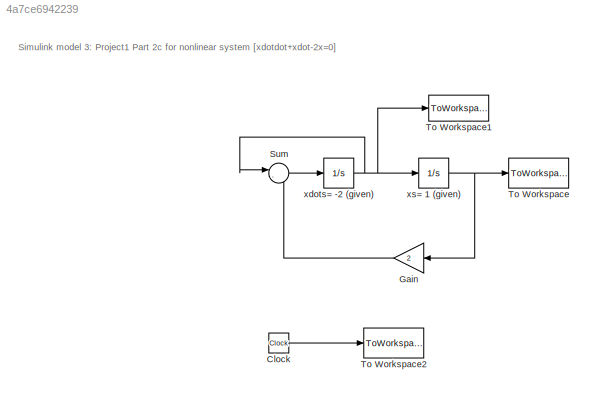
MODEL slx_4a7ce6942239
KIND model
BLOCK [Clock] Clock
BLOCK [Gain] Gain
  Gain = 2
  OutDataTypeStr = Inherit: Inherit via internal rule
  ParamDataTypeStr = Inherit: Inherit via internal rule
  SaturateOnIntegerOverflow = off
BLOCK [Sum] Sum
  IconShape = round
  InputSameDT = off
  Inputs = |-+
  OutDataTypeStr = Inherit: Inherit via internal rule
  Ports = [2, 1]
  SaturateOnIntegerOverflow = off
BLOCK [ToWorkspace] To Workspace
  FixptAsFi = on
  MaxDataPoints = inf
  Ports = [1]
  SampleTime = -1
  Save2DSignal = 3-D array (concatenate along third dimension)
  VariableName = xs
BLOCK [ToWorkspace] To Workspace1
  FixptAsFi = on
  MaxDataPoints = inf
  Ports = [1]
  SampleTime = -1
  Save2DSignal = 3-D array (concatenate along third dimension)
  VariableName = xdots
BLOCK [ToWorkspace] To Workspace2
  FixptAsFi = on
  MaxDataPoints = inf
  Ports = [1]
  SampleTime = -1
  Save2DSignal = 3-D array (concatenate along third dimension)
  VariableName = time
BLOCK [Integrator] xdots= -2 (given) 
  InitialCondition = -2
  Ports = [1, 1]
BLOCK [Integrator] xs= 1 (given)
  InitialCondition = 1
  Ports = [1, 1]
ANNOTATION (root): Simulink model 3: Project1 Part 2c for nonlinear system [xdotdot+xdot-2x=0]
LINE Clock:1 -> To Workspace2:1
LINE Gain:1 -> Sum:2
LINE Sum:1 -> xdots= -2 (given) :1
NET xdots= -2 (given) :1 -> Sum:1, To Workspace1:1, xs= 1 (given):1
NET xs= 1 (given):1 -> Gain:1, To Workspace:1
note: NET lines group one-source signal fan-out (src -> all destinations, sorted); 1:1 wires keep LINE
